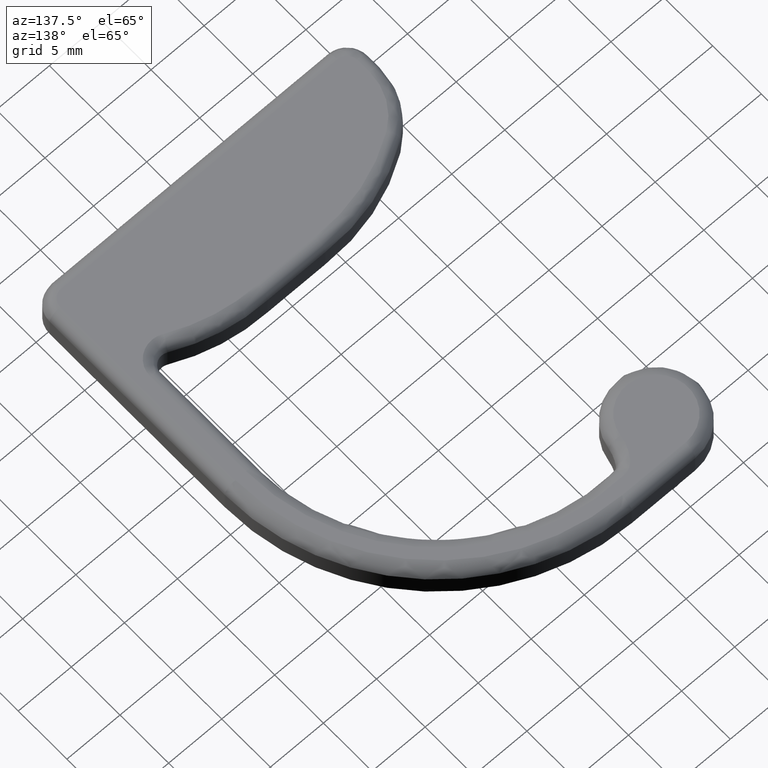
[diagram: clean part render]
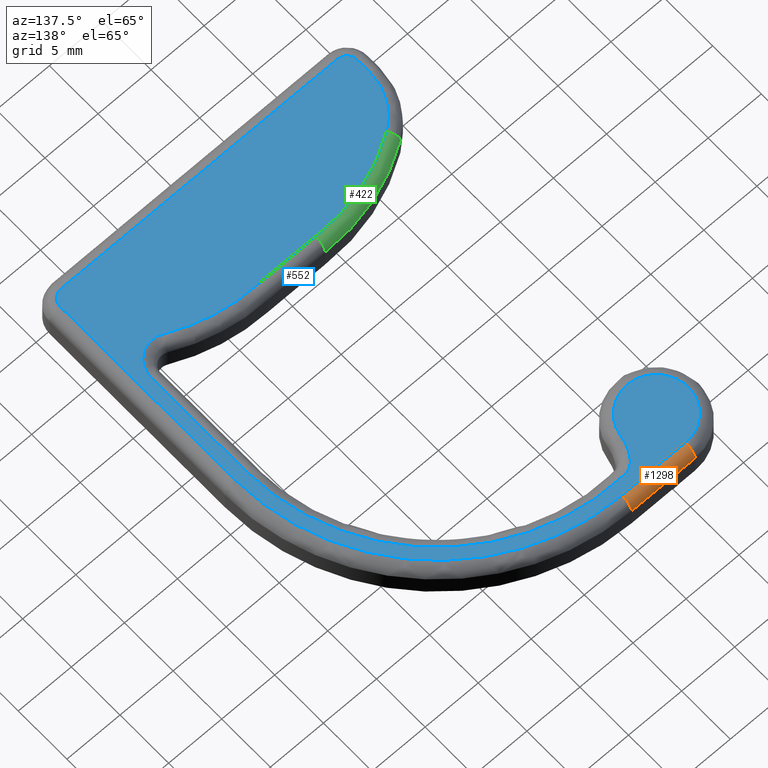
[diagram: same view with three faces highlighted in distinct colors, each labeled with its STEP entity id]
A machine part, auxiliary view with three faces highlighted in distinct colors.
Their STEP definitions:

[orange] entity #1298 — the highlighted cylindrical surface (edge-blend (fillet) strip) has radius 1 mm, axis along (1, -0, 0).
#480=CARTESIAN_POINT('',(5.999999999999659,34.497946085872059,3.0));
#481=VERTEX_POINT('',#480);
#489=CARTESIAN_POINT('',(5.684342E-014,34.497946085872172,3.0));
#490=VERTEX_POINT('',#489);
#491=CARTESIAN_POINT('',(5.999999999999659,34.497946085872059,3.0));
#492=DIRECTION('',(-1.0,0.0,0.0));
#493=VECTOR('',#492,5.999999999999631);
#494=LINE('',#491,#493);
#495=EDGE_CURVE('',#481,#490,#494,.T.);
#723=CARTESIAN_POINT('',(5.684342E-014,35.497946085872172,2.0));
#724=VERTEX_POINT('',#723);
#748=CARTESIAN_POINT('',(5.999999999999659,35.497946085872059,2.0));
#749=VERTEX_POINT('',#748);
#750=CARTESIAN_POINT('',(5.999999999999716,35.497946085872059,2.0));
#751=DIRECTION('',(-1.0,0.0,0.0));
#752=VECTOR('',#751,5.999999999999631);
#753=LINE('',#750,#752);
#754=EDGE_CURVE('',#749,#724,#753,.T.);
#1269=CARTESIAN_POINT('',(5.999999999999659,34.497946085872059,2.0));
#1270=DIRECTION('',(1.0,-2.842171E-014,0.0));
#1271=DIRECTION('',(2.842171E-014,1.0,0.0));
#1272=AXIS2_PLACEMENT_3D('',#1269,#1270,#1271);
#1273=CIRCLE('',#1272,1.0);
#1274=EDGE_CURVE('',#749,#481,#1273,.T.);
#1281=CARTESIAN_POINT('',(5.999999999999659,34.497946085872059,2.0));
#1282=DIRECTION('',(1.0,-2.842171E-014,0.0));
#1283=DIRECTION('',(2.842171E-014,1.0,0.0));
#1284=AXIS2_PLACEMENT_3D('',#1281,#1282,#1283);
#1285=CYLINDRICAL_SURFACE('',#1284,1.0);
#1286=ORIENTED_EDGE('',*,*,#754,.T.);
#1287=CARTESIAN_POINT('',(0.0,34.497946085872286,2.0));
#1288=DIRECTION('',(1.0,0.0,0.0));
#1289=DIRECTION('',(0.0,1.0,0.0));
#1290=AXIS2_PLACEMENT_3D('',#1287,#1288,#1289);
#1291=CIRCLE('',#1290,1.0);
#1292=EDGE_CURVE('',#724,#490,#1291,.T.);
#1293=ORIENTED_EDGE('',*,*,#1292,.T.);
#1294=ORIENTED_EDGE('',*,*,#495,.F.);
#1295=ORIENTED_EDGE('',*,*,#1274,.F.);
#1296=EDGE_LOOP('',(#1286,#1293,#1294,#1295));
#1297=FACE_OUTER_BOUND('',#1296,.T.);
#1298=ADVANCED_FACE('',(#1297),#1285,.T.);

[blue] entity #552 — the highlighted planar face has unit normal (0, 0, 1).
#278=CARTESIAN_POINT('',(13.731026970699588,5.497942703677609,3.0));
#279=VERTEX_POINT('',#278);
#290=CARTESIAN_POINT('',(21.102793216588111,3.867204929637865,3.0));
#291=VERTEX_POINT('',#290);
#292=CARTESIAN_POINT('',(14.189954503387639,-9.904910864145336,3.0));
#293=DIRECTION('',(0.0,0.0,1.0));
#294=DIRECTION('',(1.0,0.0,0.0));
#295=AXIS2_PLACEMENT_3D('',#292,#293,#294);
#296=CIRCLE('',#295,15.409688916783985);
#297=EDGE_CURVE('',#291,#279,#296,.T.);
#316=CARTESIAN_POINT('',(8.268979784786865,5.497942703677609,3.0));
#317=VERTEX_POINT('',#316);
#328=CARTESIAN_POINT('',(13.731026970699588,5.497942703677609,3.0));
#329=DIRECTION('',(-1.0,0.0,0.0));
#330=VECTOR('',#329,5.462047185912738);
#331=LINE('',#328,#330);
#332=EDGE_CURVE('',#279,#317,#331,.T.);
#403=CARTESIAN_POINT('',(-0.790694796352597,2.881240344119419,3.0));
#404=VERTEX_POINT('',#403);
#412=CARTESIAN_POINT('',(7.810052252098785,-9.904910864145336,3.0));
#413=DIRECTION('',(0.0,0.0,1.0));
#414=DIRECTION('',(1.0,0.0,0.0));
#415=AXIS2_PLACEMENT_3D('',#412,#413,#414);
#416=CIRCLE('',#415,15.409688916783985);
#417=EDGE_CURVE('',#317,#404,#416,.T.);
#423=CARTESIAN_POINT('',(-7.000120485923247,-8.502173916544052,3.0));
#424=DIRECTION('',(0.0,0.0,1.0));
#425=DIRECTION('',(1.0,0.0,0.0));
#426=AXIS2_PLACEMENT_3D('',#423,#424,#425);
#427=PLANE('',#426);
#428=ORIENTED_EDGE('',*,*,#417,.T.);
#429=CARTESIAN_POINT('',(-3.000000222665562,-1.267496392306725,3.0));
#430=VERTEX_POINT('',#429);
#431=CARTESIAN_POINT('',(1.999999777334381,-1.267497270675676,3.0));
#432=DIRECTION('',(0.0,0.0,1.0));
#433=DIRECTION('',(1.0,0.0,0.0));
#434=AXIS2_PLACEMENT_3D('',#431,#432,#433);
#435=CIRCLE('',#434,5.000000000000002);
#436=EDGE_CURVE('',#404,#430,#435,.T.);
#437=ORIENTED_EDGE('',*,*,#436,.T.);
#438=CARTESIAN_POINT('',(-3.000000439545033,-2.502054089801732,3.0));
#439=VERTEX_POINT('',#438);
#440=CARTESIAN_POINT('',(-3.000000222665562,-1.267496392306612,3.0));
#441=DIRECTION('',(-0.000000175673823,-0.999999999999985,0.0));
#442=VECTOR('',#441,1.234557697495139);
#443=LINE('',#440,#442);
#444=EDGE_CURVE('',#430,#439,#443,.T.);
#445=ORIENTED_EDGE('',*,*,#444,.T.);
#446=CARTESIAN_POINT('',(-2.000000439545005,-3.502053914127828,3.0));
#447=VERTEX_POINT('',#446);
#448=CARTESIAN_POINT('',(-2.000000439545005,-2.502053914127828,3.0));
#449=DIRECTION('',(0.0,0.0,1.0));
#450=DIRECTION('',(1.0,0.0,0.0));
#451=AXIS2_PLACEMENT_3D('',#448,#449,#450);
#452=CIRCLE('',#451,1.000000000000000);
#453=EDGE_CURVE('',#439,#447,#452,.T.);
#454=ORIENTED_EDGE('',*,*,#453,.T.);
#455=CARTESIAN_POINT('',(23.999999999999631,-3.502053914128055,3.0));
#456=VERTEX_POINT('',#455);
#457=CARTESIAN_POINT('',(-2.000000439545005,-3.502053914127941,3.0));
#458=DIRECTION('',(1.0,0.0,0.0));
#459=VECTOR('',#458,26.000000439544635);
#460=LINE('',#457,#459);
#461=EDGE_CURVE('',#447,#456,#460,.T.);
#462=ORIENTED_EDGE('',*,*,#461,.T.);
#463=CARTESIAN_POINT('',(24.999999999999602,-2.502053914127828,3.0));
#464=VERTEX_POINT('',#463);
#465=CARTESIAN_POINT('',(23.999999999999602,-2.502053914127828,3.0));
#466=DIRECTION('',(0.0,0.0,1.0));
#467=DIRECTION('',(1.0,0.0,0.0));
#468=AXIS2_PLACEMENT_3D('',#465,#466,#467);
#469=CIRCLE('',#468,1.000000000000000);
#470=EDGE_CURVE('',#456,#464,#469,.T.);
#471=ORIENTED_EDGE('',*,*,#470,.T.);
#472=CARTESIAN_POINT('',(24.999999999999659,15.497946085872059,3.0));
#473=VERTEX_POINT('',#472);
#474=CARTESIAN_POINT('',(24.999999999999659,-2.502053914127828,3.0));
#475=DIRECTION('',(0.0,1.0,0.0));
#476=VECTOR('',#475,17.999999999999886);
#477=LINE('',#474,#476);
#478=EDGE_CURVE('',#464,#473,#477,.T.);
#479=ORIENTED_EDGE('',*,*,#478,.T.);
#480=CARTESIAN_POINT('',(5.999999999999659,34.497946085872059,3.0));
#481=VERTEX_POINT('',#480);
#482=CARTESIAN_POINT('',(5.999999999999631,15.497946085872059,3.0));
#483=DIRECTION('',(0.0,0.0,1.0));
#484=DIRECTION('',(1.0,0.0,0.0));
#485=AXIS2_PLACEMENT_3D('',#482,#483,#484);
#486=CIRCLE('',#485,19.000000000000004);
#487=EDGE_CURVE('',#473,#481,#486,.T.);
#488=ORIENTED_EDGE('',*,*,#487,.T.);
#489=CARTESIAN_POINT('',(5.684342E-014,34.497946085872172,3.0));
#490=VERTEX_POINT('',#489);
#491=CARTESIAN_POINT('',(5.999999999999659,34.497946085872059,3.0));
#492=DIRECTION('',(-1.0,0.0,0.0));
#493=VECTOR('',#492,5.999999999999631);
#494=LINE('',#491,#493);
#495=EDGE_CURVE('',#481,#490,#494,.T.);
#496=ORIENTED_EDGE('',*,*,#495,.T.);
#497=CARTESIAN_POINT('',(2.967442066026848,31.057165432060970,3.0));
#498=VERTEX_POINT('',#497);
#499=CARTESIAN_POINT('',(0.0,31.497946085872286,3.0));
#500=DIRECTION('',(0.0,0.0,1.0));
#501=DIRECTION('',(1.0,0.0,0.0));
#502=AXIS2_PLACEMENT_3D('',#499,#500,#501);
#503=CIRCLE('',#502,3.000000000000001);
#504=EDGE_CURVE('',#490,#498,#503,.T.);
#505=ORIENTED_EDGE('',*,*,#504,.T.);
#506=CARTESIAN_POINT('',(3.715694696849880,32.858301764313637,3.0));
#507=VERTEX_POINT('',#506);
#508=CARTESIAN_POINT('',(6.924031487395951,30.469457893645540,3.0));
#509=DIRECTION('',(0.0,0.0,-1.0));
#510=DIRECTION('',(1.0,0.0,0.0));
#511=AXIS2_PLACEMENT_3D('',#508,#509,#510);
#512=CIRCLE('',#511,4.000000000000001);
#513=EDGE_CURVE('',#498,#507,#512,.T.);
#514=ORIENTED_EDGE('',*,*,#513,.T.);
#515=CARTESIAN_POINT('',(4.820531992696061,33.459261606171367,3.0));
#516=VERTEX_POINT('',#515);
#517=CARTESIAN_POINT('',(4.918820993304735,31.962485312813101,3.0));
#518=DIRECTION('',(0.0,0.0,-1.0));
#519=DIRECTION('',(1.0,0.0,0.0));
#520=AXIS2_PLACEMENT_3D('',#517,#518,#519);
#521=CIRCLE('',#520,1.500000000000000);
#522=EDGE_CURVE('',#507,#516,#521,.T.);
#523=ORIENTED_EDGE('',*,*,#522,.T.);
#524=CARTESIAN_POINT('',(23.999999999999659,15.497946085872059,3.0));
#525=VERTEX_POINT('',#524);
#526=CARTESIAN_POINT('',(5.999999999999659,15.497946085872059,3.0));
#527=DIRECTION('',(0.0,0.0,-1.0));
#528=DIRECTION('',(1.0,0.0,0.0));
#529=AXIS2_PLACEMENT_3D('',#526,#527,#528);
#530=CIRCLE('',#529,18.000000000000004);
#531=EDGE_CURVE('',#516,#525,#530,.T.);
#532=ORIENTED_EDGE('',*,*,#531,.T.);
#533=CARTESIAN_POINT('',(23.999999999999659,5.654666813930930,3.0));
#534=VERTEX_POINT('',#533);
#535=CARTESIAN_POINT('',(23.999999999999659,15.497946085872059,3.0));
#536=DIRECTION('',(0.0,-1.0,0.0));
#537=VECTOR('',#536,9.843279271941128);
#538=LINE('',#535,#537);
#539=EDGE_CURVE('',#525,#534,#538,.T.);
#540=ORIENTED_EDGE('',*,*,#539,.T.);
#541=CARTESIAN_POINT('',(21.999999999999659,5.654666813930930,3.0));
#542=DIRECTION('',(0.0,0.0,-1.0));
#543=DIRECTION('',(1.0,0.0,0.0));
#544=AXIS2_PLACEMENT_3D('',#541,#542,#543);
#545=CIRCLE('',#544,2.0);
#546=EDGE_CURVE('',#534,#291,#545,.T.);
#547=ORIENTED_EDGE('',*,*,#546,.T.);
#548=ORIENTED_EDGE('',*,*,#297,.T.);
#549=ORIENTED_EDGE('',*,*,#332,.T.);
#550=EDGE_LOOP('',(#428,#437,#445,#454,#462,#471,#479,#488,#496,#505,#514,#523,#532,#540,#547,#548,#549));
#551=FACE_OUTER_BOUND('',#550,.T.);
#552=ADVANCED_FACE('',(#551),#427,.T.);

[green] entity #422 — the highlighted face is a freeform B-spline surface patch.
#314=CARTESIAN_POINT('',(8.283639813359571,6.497942703677609,2.0));
#315=VERTEX_POINT('',#314);
#316=CARTESIAN_POINT('',(8.268979784786865,5.497942703677609,3.0));
#317=VERTEX_POINT('',#316);
#318=CARTESIAN_POINT('',(8.283639813359571,6.497942703677609,2.0));
#319=CARTESIAN_POINT('',(8.283639813359571,6.497942703677609,2.108541112204975));
#320=CARTESIAN_POINT('',(8.282995777037058,6.453292291061075,2.380925373193465));
#321=CARTESIAN_POINT('',(8.279501805836958,6.211816685011968,2.756754606186870));
#322=CARTESIAN_POINT('',(8.274056214346302,5.839887548745651,2.966084836749676));
#323=CARTESIAN_POINT('',(8.270310111290485,5.587261253976180,3.0));
#324=CARTESIAN_POINT('',(8.268979784786865,5.497942703677609,3.0));
#325=B_SPLINE_CURVE_WITH_KNOTS('',3,(#318,#319,#320,#321,#322,#323,#324),.UNSPECIFIED.,.F.,.U.,(4,1,1,1,4),(0.0,0.327055364377463,0.814501312419248,1.302006255357845,1.570787094880719),.UNSPECIFIED.);
#326=EDGE_CURVE('',#315,#317,#325,.T.);
#344=CARTESIAN_POINT('',(8.298761536720106,6.497499128924222,2.0));
#345=CARTESIAN_POINT('',(8.298761536720106,6.497499128924222,2.130060214677419));
#346=CARTESIAN_POINT('',(8.297211730798916,6.445483435895726,2.393027817343276));
#347=CARTESIAN_POINT('',(8.290583852165524,6.223033840297248,2.725412911472948));
#348=CARTESIAN_POINT('',(8.280684841745845,5.890796183803730,2.947961223884222));
#349=CARTESIAN_POINT('',(8.272853205836769,5.627945226927376,3.0));
#350=CARTESIAN_POINT('',(8.268979784786863,5.497942703677609,3.0));
#351=CARTESIAN_POINT('',(7.449525332961358,6.522802094634068,2.0));
#352=CARTESIAN_POINT('',(7.449525332961358,6.522802094634068,2.130060214677419));
#353=CARTESIAN_POINT('',(7.450668644070048,6.470706160269229,2.393027817343276));
#354=CARTESIAN_POINT('',(7.455558112593174,6.247913405678141,2.725412911472948));
#355=CARTESIAN_POINT('',(7.462860735730117,5.915163227059320,2.947961223884222));
#356=CARTESIAN_POINT('',(7.468638230971060,5.651906786552726,3.0));
#357=CARTESIAN_POINT('',(7.471495701867539,5.521703716591264,3.0));
#358=CARTESIAN_POINT('',(5.744176263503757,6.441072736620706,2.0));
#359=CARTESIAN_POINT('',(5.744176263503757,6.441072736620706,2.130060214677418));
#360=CARTESIAN_POINT('',(5.750727616097866,6.389235984241903,2.393027817343276));
#361=CARTESIAN_POINT('',(5.778745040269906,6.167551643758638,2.725412911472947));
#362=CARTESIAN_POINT('',(5.820590220176213,5.836456927378878,2.947961223884221));
#363=CARTESIAN_POINT('',(5.853696177204452,5.574510211477861,3.000000000000000));
#364=CARTESIAN_POINT('',(5.870069935167578,5.444954913567567,3.000000000000000));
#365=CARTESIAN_POINT('',(3.238210038024318,5.923944314792193,2.000000000000000));
#366=CARTESIAN_POINT('',(3.238210038024318,5.923944314792193,2.130060214677419));
#367=CARTESIAN_POINT('',(3.252708367311446,5.873747491744359,2.393027817343275));
#368=CARTESIAN_POINT('',(3.314711722433692,5.659076450426084,2.725412911472950));
#369=CARTESIAN_POINT('',(3.407316293573177,5.338456385944857,2.947961223884221));
#370=CARTESIAN_POINT('',(3.480580716372322,5.084796726675340,3.000000000000001));
#371=CARTESIAN_POINT('',(3.516816307604379,4.959340094736101,3.000000000000001));
#372=CARTESIAN_POINT('',(0.842435510107190,5.025304821285475,2.0));
#373=CARTESIAN_POINT('',(0.842435510107190,5.025304821285475,2.130060214677419));
#374=CARTESIAN_POINT('',(0.864531373687285,4.977957784095774,2.393027817343275));
#375=CARTESIAN_POINT('',(0.959026239209858,4.775474097684725,2.725412911472946));
#376=CARTESIAN_POINT('',(1.100158222783147,4.473056351002004,2.947961223884222));
#377=CARTESIAN_POINT('',(1.211815273701521,4.233797517638858,3.0));
#378=CARTESIAN_POINT('',(1.267039338816280,4.115463339149880,3.0));
#379=CARTESIAN_POINT('',(-0.643869370230512,4.185189984286680,2.0));
#380=CARTESIAN_POINT('',(-0.643869370230512,4.185189984286680,2.130060214677419));
#381=CARTESIAN_POINT('',(-0.617060103044784,4.140507138242577,2.393027817343276));
#382=CARTESIAN_POINT('',(-0.502407960652113,3.949417094950169,2.725412911472947));
#383=CARTESIAN_POINT('',(-0.331170251731942,3.664016224735469,2.947961223884222));
#384=CARTESIAN_POINT('',(-0.195694953362626,3.438220351320553,3.0));
#385=CARTESIAN_POINT('',(-0.128690705650067,3.326544770481285,3.0));
#386=CARTESIAN_POINT('',(-1.348833711089776,3.710987867078053,2.0));
#387=CARTESIAN_POINT('',(-1.348833711089776,3.710987867078053,2.130060214677419));
#388=CARTESIAN_POINT('',(-1.319788845064264,3.667808821498186,2.393027817343276));
#389=CARTESIAN_POINT('',(-1.195575971498445,3.483149910536306,2.725412911472948));
#390=CARTESIAN_POINT('',(-1.010058915786093,3.207354202013835,2.947961223884222));
#391=CARTESIAN_POINT('',(-0.863286463423134,2.989157485083468,3.0));
#392=CARTESIAN_POINT('',(-0.790694796352595,2.881240344119410,3.0));
#393=B_SPLINE_SURFACE_WITH_KNOTS('',3,3,((#344,#351,#358,#365,#372,#379,#386),(#345,#352,#359,#366,#373,#380,#387),(#346,#353,#360,#367,#374,#381,#388),(#347,#354,#361,#368,#375,#382,#389),(#348,#355,#362,#369,#376,#383,#390),(#349,#356,#363,#370,#377,#384,#391),(#350,#357,#364,#371,#378,#385,#392)),.UNSPECIFIED.,.F.,.F.,.U.,(4,1,1,1,4),(4,1,1,1,4),(0.0,0.390180644032257,0.780361288064513,1.170541932096770,1.560722576129026),(0.0,2.487133759022788,4.974267518045575,7.461401277068362,9.948535036091151),.UNSPECIFIED.);
#394=CARTESIAN_POINT('',(-1.348833711089782,3.710987867078075,2.0));
#395=VERTEX_POINT('',#394);
#396=CARTESIAN_POINT('',(7.810052252098785,-9.904910864145336,2.0));
#397=DIRECTION('',(0.0,0.0,1.0));
#398=DIRECTION('',(1.0,0.0,0.0));
#399=AXIS2_PLACEMENT_3D('',#396,#397,#398);
#400=CIRCLE('',#399,16.409688916783985);
#401=EDGE_CURVE('',#315,#395,#400,.T.);
#402=ORIENTED_EDGE('',*,*,#401,.T.);
#403=CARTESIAN_POINT('',(-0.790694796352597,2.881240344119419,3.0));
#404=VERTEX_POINT('',#403);
#405=CARTESIAN_POINT('',(-0.790694796351432,2.881240344117601,2.0));
#406=DIRECTION('',(0.829747522958657,0.558138914737158,0.0));
#407=DIRECTION('',(-0.558138914737158,0.829747522958657,0.0));
#408=AXIS2_PLACEMENT_3D('',#405,#406,#407);
#409=CIRCLE('',#408,0.999999999999998);
#410=EDGE_CURVE('',#395,#404,#409,.T.);
#411=ORIENTED_EDGE('',*,*,#410,.T.);
#412=CARTESIAN_POINT('',(7.810052252098785,-9.904910864145336,3.0));
#413=DIRECTION('',(0.0,0.0,1.0));
#414=DIRECTION('',(1.0,0.0,0.0));
#415=AXIS2_PLACEMENT_3D('',#412,#413,#414);
#416=CIRCLE('',#415,15.409688916783985);
#417=EDGE_CURVE('',#317,#404,#416,.T.);
#418=ORIENTED_EDGE('',*,*,#417,.F.);
#419=ORIENTED_EDGE('',*,*,#326,.F.);
#420=EDGE_LOOP('',(#402,#411,#418,#419));
#421=FACE_OUTER_BOUND('',#420,.T.);
#422=ADVANCED_FACE('',(#421),#393,.F.);